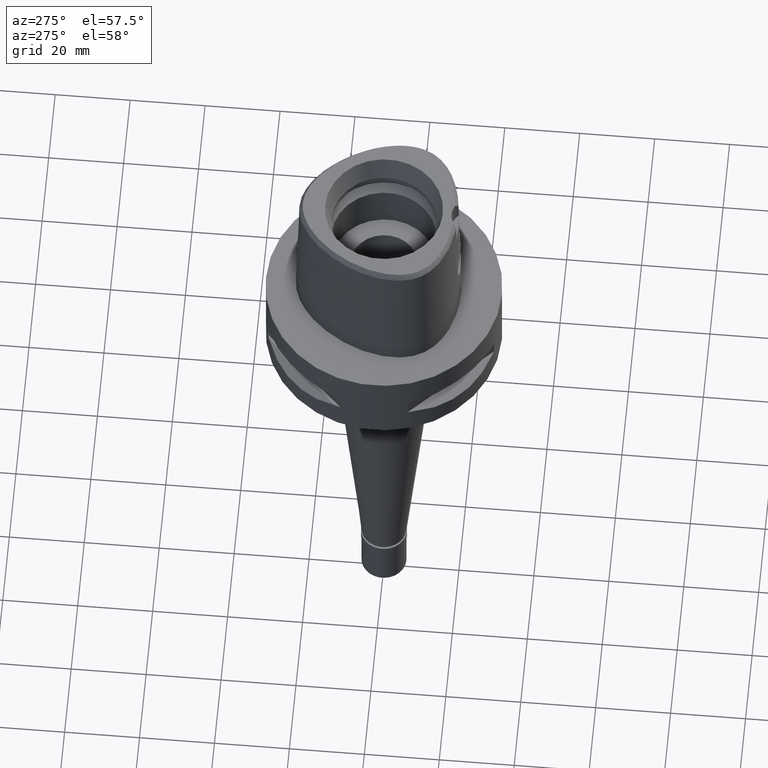
[diagram: clean part render]
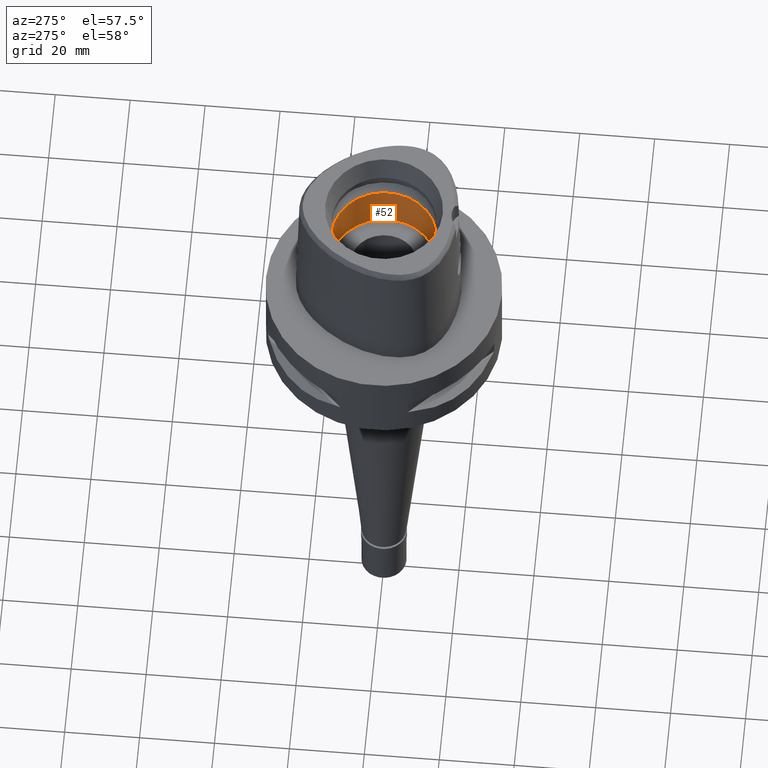
[diagram: same view with one face highlighted and labeled with its STEP entity id]
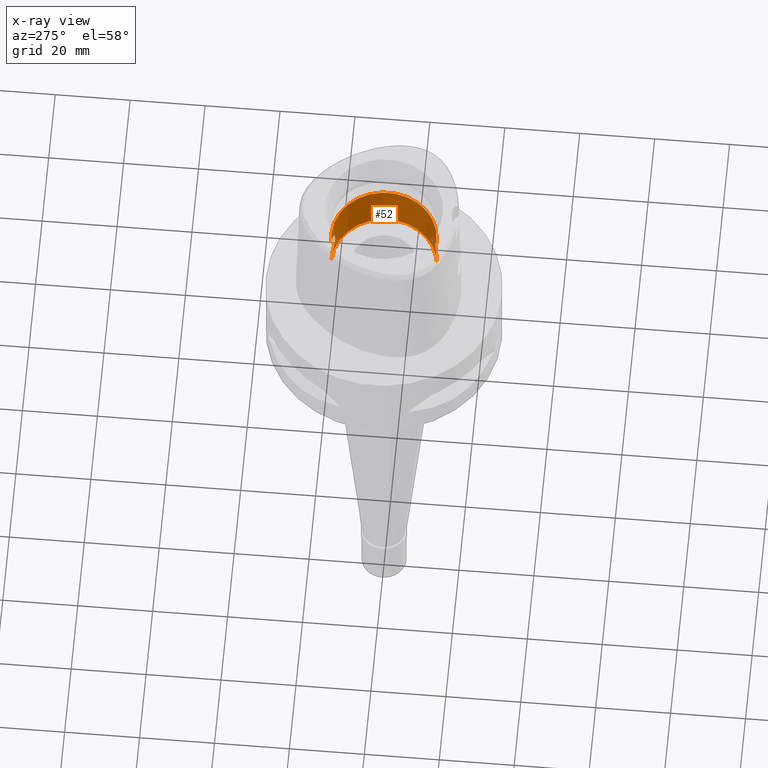
[diagram: x-ray of the same camera — body ghosted, the highlighted face saturated]
A machine part, auxiliary view. The second image highlights one B-rep face of the part: STEP entity #52.
The next image is the same camera in x-ray: the body ghosted, the highlighted face saturated — about 4% of this face is hidden behind the body in this view.
In plain terms, the highlighted cylindrical surface (partial cylindrical patch) has radius 14 mm, axis along (0, 0, -1).
Its self-contained STEP definition (entity closure, byte-faithful):
#13 = CARTESIAN_POINT ( 'NONE',  ( 1.773869829159604228, -13.88717198022183119, 11.85856959825438750 ) ) ;
#24 = DIRECTION ( 'NONE',  ( 0.0000000000000000000, 0.0000000000000000000, 1.000000000000000000 ) ) ;
#34 = CARTESIAN_POINT ( 'NONE',  ( 4.027167981715002121, -13.40875010522974264, 14.99686531039766102 ) ) ;
#51 = CARTESIAN_POINT ( 'NONE',  ( 0.5031375786334186806, 13.99299620741434147, 11.47286437005295490 ) ) ;
#52 = ADVANCED_FACE ( 'NONE', ( #214 ), #1316, .F. ) ;
#56 = CARTESIAN_POINT ( 'NONE',  ( 3.267860856929353019, -13.61367823520136078, 13.10390269899082583 ) ) ;
#163 = CARTESIAN_POINT ( 'NONE',  ( 0.2481266265557514894, 13.99999999999999822, 11.44999999999999929 ) ) ;
#189 = CARTESIAN_POINT ( 'NONE',  ( 1.499100513063570173, 13.91942902670013815, 11.73762153892137405 ) ) ;
#209 = CARTESIAN_POINT ( 'NONE',  ( 3.359020109920425323, 13.59103542220760552, 13.23737089539453038 ) ) ;
#210 = CARTESIAN_POINT ( 'NONE',  ( 0.0000000000000000000, -14.00000000000000000, 24.19999999999999929 ) ) ;
#214 = FACE_OUTER_BOUND ( 'NONE', #1230, .T. ) ;
#216 = CARTESIAN_POINT ( 'NONE',  ( 2.987578035450121572, -13.67819521536447702, 18.24080360132781919 ) ) ;
#236 = CARTESIAN_POINT ( 'NONE',  ( 3.701448599103457582, 13.50196410078377518, 13.85577559941025960 ) ) ;
#261 = CARTESIAN_POINT ( 'NONE',  ( 1.210739730898177324, 13.94747155560755481, 11.63462642381729140 ) ) ;
#269 = DIRECTION ( 'NONE',  ( 0.0000000000000000000, 0.0000000000000000000, 1.000000000000000000 ) ) ;
#285 = ORIENTED_EDGE ( 'NONE', *, *, #3662, .F. ) ;
#318 = CARTESIAN_POINT ( 'NONE',  ( 2.838009928923838299, -13.70933862723131291, 18.38942009772304687 ) ) ;
#332 = CARTESIAN_POINT ( 'NONE',  ( 2.010501717863202309, 13.85534156540723494, 19.01828921525949312 ) ) ;
#339 = CARTESIAN_POINT ( 'NONE',  ( 3.612125191146808856, -13.52615234760308560, 17.33290907846121343 ) ) ;
#353 = CARTESIAN_POINT ( 'NONE',  ( 2.322867096201477466, 13.80594945636748427, 18.81782271161904063 ) ) ;
#362 = CARTESIAN_POINT ( 'NONE',  ( 3.754236443711939319, -13.48734669257275520, 13.98069631227876997 ) ) ;
#385 = CARTESIAN_POINT ( 'NONE',  ( 2.130881178330037429, -13.83743566614538878, 12.05283858994643609 ) ) ;
#409 = CARTESIAN_POINT ( 'NONE',  ( 3.098515381885727393, -13.65306636117298389, 12.89080379854775238 ) ) ;
#434 = CARTESIAN_POINT ( 'NONE',  ( 3.518056051390934691, -13.55098508630389631, 17.51091968138044663 ) ) ;
#562 = CARTESIAN_POINT ( 'NONE',  ( 4.050104837866480345, 13.40137507185019139, 15.25494482423060916 ) ) ;
#567 = DIRECTION ( 'NONE',  ( 0.0000000000000000000, 0.0000000000000000000, -1.000000000000000000 ) ) ;
#587 = CARTESIAN_POINT ( 'NONE',  ( 1.307187133430519399, 13.93893568339380096, 11.66569962607649025 ) ) ;
#609 = CARTESIAN_POINT ( 'NONE',  ( 4.027216825679192702, 13.40877103518746871, 14.99603235320515005 ) ) ;
#631 = CARTESIAN_POINT ( 'NONE',  ( 3.770295828579745656, 13.48287449147561468, 16.97915267913196757 ) ) ;
#633 = CIRCLE ( 'NONE', #3091, 14.00000000000000000 ) ;
#645 = CARTESIAN_POINT ( 'NONE',  ( 2.225307842479133935, -13.82200032480936791, 18.88386244170206041 ) ) ;
#660 = CARTESIAN_POINT ( 'NONE',  ( 1.994196793524470213, 13.85732250604610805, 11.97431708282836205 ) ) ;
#682 = CARTESIAN_POINT ( 'NONE',  ( 3.386213530918528836, 13.58429339872634856, 17.72172867400206897 ) ) ;
#689 = CARTESIAN_POINT ( 'NONE',  ( 2.230287417955466367, -13.82119696819923327, 18.88058087294110976 ) ) ;
#690 = DIRECTION ( 'NONE',  ( 0.0000000000000000000, -1.000000000000000000, 0.0000000000000000000 ) ) ;
#706 = CARTESIAN_POINT ( 'NONE',  ( 2.130873031702367637, 13.83743700474895988, 18.94716637657443314 ) ) ;
#716 = CARTESIAN_POINT ( 'NONE',  ( 1.499090398665863022, -13.91942988264788639, 19.26238249073140807 ) ) ;
#740 = CARTESIAN_POINT ( 'NONE',  ( 3.377736576017047909, -13.58640317541383702, 13.26540774977728709 ) ) ;
#760 = CARTESIAN_POINT ( 'NONE',  ( 2.268773195283242394, -13.81494468100451023, 12.14511832103185718 ) ) ;
#785 = CARTESIAN_POINT ( 'NONE',  ( 3.927475894227258735, -13.43840014691404683, 16.52342187611872504 ) ) ;
#810 = CARTESIAN_POINT ( 'NONE',  ( 1.832691376603167388, -13.87954557478522410, 11.88776574647553552 ) ) ;
#821 = CARTESIAN_POINT ( 'NONE',  ( 0.0000000000000000000, -14.00000000000000000, 11.00000000000000000 ) ) ;
#858 = CARTESIAN_POINT ( 'NONE',  ( 0.4996170307295716984, -14.00000000000000355, 11.45000000000000107 ) ) ;
#876 = LINE ( 'NONE', #1591, #2296 ) ;
#882 = ORIENTED_EDGE ( 'NONE', *, *, #3742, .T. ) ;
#934 = CARTESIAN_POINT ( 'NONE',  ( 3.217025596612696159, 13.62560769364254121, 13.03875506140147245 ) ) ;
#967 = CARTESIAN_POINT ( 'NONE',  ( 3.922078288975832550, 13.43983163058545216, 16.51882742553132744 ) ) ;
#991 = CARTESIAN_POINT ( 'NONE',  ( 3.253122838855824650, 13.61695847479241372, 13.08700209528362990 ) ) ;
#993 = VERTEX_POINT ( 'NONE', #210 ) ;
#997 = CARTESIAN_POINT ( 'NONE',  ( 2.206604282644675674, -13.82500263683901487, 18.89610616578819347 ) ) ;
#1012 = CARTESIAN_POINT ( 'NONE',  ( 3.612092316972849382, 13.52616139820945840, 13.66702611675805912 ) ) ;
#1020 = CARTESIAN_POINT ( 'NONE',  ( 3.354718119057051418, -13.59210031745036140, 17.76901166031866452 ) ) ;
#1038 = CARTESIAN_POINT ( 'NONE',  ( 3.649287754595487154, 13.51628378879415493, 17.26146357317137259 ) ) ;
#1046 = CARTESIAN_POINT ( 'NONE',  ( 2.180430719104277770, -13.82916524274332204, 18.91303019137124508 ) ) ;
#1060 = CARTESIAN_POINT ( 'NONE',  ( 1.571457089747873015, 13.91140721976916161, 19.23272879698425797 ) ) ;
#1067 = CARTESIAN_POINT ( 'NONE',  ( 0.5031329880713201197, -13.99299628181930544, 19.52713608389184330 ) ) ;
#1082 = CARTESIAN_POINT ( 'NONE',  ( 1.643112089911282103, 13.90317243032383310, 19.20194634167802761 ) ) ;
#1088 = CARTESIAN_POINT ( 'NONE',  ( 3.092415008935291088, -13.65466569416509302, 18.11866219970372427 ) ) ;
#1109 = CARTESIAN_POINT ( 'NONE',  ( 2.903809840715919854, 13.69558042598262659, 18.32352754249725635 ) ) ;
#1121 = CARTESIAN_POINT ( 'NONE',  ( 3.833378784114828797, -13.46518651549687284, 14.19006897786093369 ) ) ;
#1136 = CARTESIAN_POINT ( 'NONE',  ( 3.098494804879538211, 13.65307097560869387, 18.10922060603499872 ) ) ;
#1143 = CARTESIAN_POINT ( 'NONE',  ( 3.524216152961116677, -13.54926445640474597, 13.50320070279009421 ) ) ;
#1146 = CARTESIAN_POINT ( 'NONE',  ( 0.0000000000000000000, 14.00000000000000000, 11.00000000000000000 ) ) ;
#1156 = CARTESIAN_POINT ( 'NONE',  ( 3.444114222031988692, 13.56977022798860943, 17.63138026180062568 ) ) ;
#1162 = CARTESIAN_POINT ( 'NONE',  ( 3.922079205926539913, -13.43983130148735583, 14.48117699415297821 ) ) ;
#1185 = CARTESIAN_POINT ( 'NONE',  ( 3.471407568611402983, -13.56281871368658543, 13.41360808472617805 ) ) ;
#1204 = ORIENTED_EDGE ( 'NONE', *, *, #3434, .T. ) ;
#1213 = CARTESIAN_POINT ( 'NONE',  ( 3.953314660134230607, -13.43069195179432818, 14.61062672899636716 ) ) ;
#1230 = EDGE_LOOP ( 'NONE', ( #285, #1204, #3853, #2599, #882, #2405, #3518, #3464 ) ) ;
#1312 = CARTESIAN_POINT ( 'NONE',  ( 1.467188112043209536, 13.92282148873381864, 11.72506250693671959 ) ) ;
#1316 = CYLINDRICAL_SURFACE ( 'NONE', #2637, 14.00000000000000000 ) ;
#1335 = CARTESIAN_POINT ( 'NONE',  ( 2.705631081799999116, 13.73602433005236634, 12.48611241059719035 ) ) ;
#1365 = CARTESIAN_POINT ( 'NONE',  ( 3.300115213836696260, 13.60554254243724337, 13.15213791959231138 ) ) ;
#1389 = CARTESIAN_POINT ( 'NONE',  ( 3.953315574824776135, 13.43069190713378624, 16.38937041768015845 ) ) ;
#1394 = CARTESIAN_POINT ( 'NONE',  ( 3.300146341868730016, -13.60553517925856859, 17.84781835519089199 ) ) ;
#1408 = CARTESIAN_POINT ( 'NONE',  ( 3.681888265755570266, 13.50730898609645436, 13.81262890093873175 ) ) ;
#1414 = CARTESIAN_POINT ( 'NONE',  ( 1.643402327193238976, -13.90359116571691622, 19.20357680869639339 ) ) ;
#1429 = CARTESIAN_POINT ( 'NONE',  ( 3.471388650628844719, 13.56282351116247931, 17.58642340599717713 ) ) ;
#1439 = CARTESIAN_POINT ( 'NONE',  ( 1.419263858855973170, -13.92782887280988824, 19.29344666030895894 ) ) ;
#1457 = EDGE_CURVE ( 'NONE', #4826, #3936, #876, .T. ) ;
#1485 = CARTESIAN_POINT ( 'NONE',  ( 3.792123985356183447, -13.47677720437842019, 14.07719458704158022 ) ) ;
#1502 = CARTESIAN_POINT ( 'NONE',  ( 3.393626394333282725, 13.58244558944590707, 17.71041667754009907 ) ) ;
#1512 = CARTESIAN_POINT ( 'NONE',  ( 2.935464796398259413, -13.68884427349787636, 12.70941809089527830 ) ) ;
#1529 = CARTESIAN_POINT ( 'NONE',  ( 1.832682128990698933, 13.87954668814469095, 19.11223895306134324 ) ) ;
#1536 = CARTESIAN_POINT ( 'NONE',  ( 3.444134305109939564, -13.56976516763156049, 13.36865222198565561 ) ) ;
#1555 = CARTESIAN_POINT ( 'NONE',  ( 2.903830259238845191, -13.69557610161474948, 12.67649343709667953 ) ) ;
#1559 = CARTESIAN_POINT ( 'NONE',  ( 0.0000000000000000000, 14.00000000000000000, 11.00000000000000000 ) ) ;
#1570 = CARTESIAN_POINT ( 'NONE',  ( 0.8886602407127003334, 13.97198482965737121, 11.54653314446270684 ) ) ;
#1575 = CARTESIAN_POINT ( 'NONE',  ( 3.701476196218872250, -13.50195603622213092, 17.14416223936576600 ) ) ;
#1582 = DIRECTION ( 'NONE',  ( 0.0000000000000000000, 0.0000000000000000000, 1.000000000000000000 ) ) ;
#1591 = CARTESIAN_POINT ( 'NONE',  ( 0.0000000000000000000, 14.00000000000000000, 19.55000000000000071 ) ) ;
#1625 = LINE ( 'NONE', #2825, #2375 ) ;
#1680 = CARTESIAN_POINT ( 'NONE',  ( 3.344202712348856910, 13.59470072214079472, 13.21548413958312906 ) ) ;
#1703 = CARTESIAN_POINT ( 'NONE',  ( 2.407026743192268281, 13.79179092510792692, 12.24014823371155458 ) ) ;
#1706 = B_SPLINE_CURVE_WITH_KNOTS ( 'NONE', 3,
 ( #2961, #1785, #1067, #4799, #4014, #3355, #3329, #1439, #2137, #716, #4437, #1414, #3620, #2934, #3648, #3285, #3717, #1046, #997, #4776, #645, #689, #4751, #4845, #2980, #4063, #2576, #4481, #4081, #2208, #318, #216, #1088, #1737, #3258, #1394, #2912, #4410, #1020, #4040, #2165, #3675, #4529, #434, #339, #3832, #4865, #1575, #3439, #2666, #4174, #3377, #3393, #785, #1859, #1881, #1948, #34, #1213, #1162, #4566, #1121, #1485, #2998, #2303, #362, #3744, #4886, #3029, #4505, #1143, #1185, #1536, #2257, #2627, #3809, #4132, #740, #2325, #56, #1907, #409, #1928, #3764, #1512, #1555, #4225, #3071, #2238, #2694, #2648, #3461, #4153, #760, #2276, #4202, #3782, #385, #3419, #810, #13, #3102, #3050, #4597, #4549, #2721, #3176, #858, #3905 ),
 .UNSPECIFIED., .F., .F.,
 ( 4, 2, 2, 1, 1, 2, 2, 2, 2, 1, 1, 1, 2, 2, 2, 2, 1, 2, 2, 2, 2, 1, 1, 1, 2, 2, 2, 2, 1, 1, 2, 2, 2, 2, 2, 2, 1, 1, 1, 2, 2, 2, 2, 1, 1, 1, 2, 2, 2, 2, 2, 2, 2, 2, 1, 1, 1, 2, 2, 2, 2, 1, 2, 2, 4 ),
 ( 0.0000000000000000000, 0.06249999999994695909, 0.09374999999992046640, 0.1093749999999070882, 0.1171874999999003714, 0.1210937499998970546, 0.1249999999998937378, 0.1562499999998678002, 0.1718749999998550326, 0.1796874999998488431, 0.1835937499998455125, 0.1855468749998440137, 0.1865234374998430977, 0.1874999999998421818, 0.2187499999998184230, 0.2343749999998064881, 0.2421874999998005484, 0.2460937499997977451, 0.2499999999997949973, 0.2812499999997747357, 0.2968749999997642441, 0.3046874999997590816, 0.3085937499997564726, 0.3105468749997550848, 0.3115234374997549183, 0.3124999999997547517, 0.3437499999997624123, 0.3593749999997665201, 0.3671874999997685185, 0.3710937499997691846, 0.3730468749997694622, 0.3749999999997697397, 0.4374999999997811195, 0.4999999999997926103, 0.5624999999998034905, 0.5937499999998089306, 0.6093749999998114841, 0.6171874999998129274, 0.6210937499998135936, 0.6230468749998141487, 0.6249999999998147038, 0.6562499999998239186, 0.6718749999998283595, 0.6796874999998306910, 0.6835937499998319122, 0.6855468749998325784, 0.6865234374998329114, 0.6874999999998333555, 0.7187499999998478994, 0.7343749999998552269, 0.7421874999998590017, 0.7499999999998626654, 0.7812499999998773204, 0.7968749999998847589, 0.8046874999998885336, 0.8085937499998905320, 0.8105468749998913092, 0.8115234374998919753, 0.8124999999998925304, 0.8437499999999107381, 0.8593749999999200639, 0.8671874999999246159, 0.8710937499999267253, 0.8749999999999288347, 1.000000000000000000 ),
 .UNSPECIFIED. ) ;
#1728 = CARTESIAN_POINT ( 'NONE',  ( 1.516910412628454941, 13.91749993127530338, 11.74477520273373088 ) ) ;
#1737 = CARTESIAN_POINT ( 'NONE',  ( 3.217051634182986231, -13.62560167972273106, 17.96121095376075516 ) ) ;
#1758 = CARTESIAN_POINT ( 'NONE',  ( 4.027172463327453045, 13.40874935841133286, 16.00310739072683219 ) ) ;
#1779 = CARTESIAN_POINT ( 'NONE',  ( 3.754225769601407414, 13.48734939608367256, 17.01933006533145942 ) ) ;
#1785 = CARTESIAN_POINT ( 'NONE',  ( 0.2481241772469208740, -14.00000000000000000, 19.55000000000000071 ) ) ;
#1798 = CARTESIAN_POINT ( 'NONE',  ( 3.381252386274370192, 13.58552879951883163, 17.72927178203390142 ) ) ;
#1825 = CARTESIAN_POINT ( 'NONE',  ( 2.261340657230167306, 13.81616386826044440, 18.85988797635845771 ) ) ;
#1851 = CARTESIAN_POINT ( 'NONE',  ( 2.268763823125369505, 13.81494635579297814, 18.85488801683514737 ) ) ;
#1859 = CARTESIAN_POINT ( 'NONE',  ( 4.027223470529567528, -13.40876944168271834, 16.00391502723211801 ) ) ;
#1874 = CARTESIAN_POINT ( 'NONE',  ( 2.255317399662760014, 13.81714987027326735, 18.86393579140817423 ) ) ;
#1881 = CARTESIAN_POINT ( 'NONE',  ( 4.050109039351831086, -13.40137442886396535, 15.74496307468086265 ) ) ;
#1899 = CARTESIAN_POINT ( 'NONE',  ( 2.993275682357356082, 13.67636296179904498, 18.22847972523965154 ) ) ;
#1907 = CARTESIAN_POINT ( 'NONE',  ( 3.144649004257418667, -13.64249969685167940, 12.94694166653767198 ) ) ;
#1928 = CARTESIAN_POINT ( 'NONE',  ( 3.020680690208538355, -13.67035562331175491, 12.80193796120899208 ) ) ;
#1948 = CARTESIAN_POINT ( 'NONE',  ( 4.049890164045743646, -13.40142381087270174, 15.25144457808762510 ) ) ;
#1974 = CIRCLE ( 'NONE', #3866, 14.00000000000000000 ) ;
#2060 = DIRECTION ( 'NONE',  ( 0.0000000000000000000, 0.0000000000000000000, 1.000000000000000000 ) ) ;
#2082 = CARTESIAN_POINT ( 'NONE',  ( 2.180412222381781895, 13.82916808513172846, 12.08695799700200801 ) ) ;
#2106 = CARTESIAN_POINT ( 'NONE',  ( 3.092390698994108789, 13.65467114203288723, 12.88130927505224399 ) ) ;
#2128 = CARTESIAN_POINT ( 'NONE',  ( 4.049894426080560272, 13.40142315477311641, 15.74850829861885337 ) ) ;
#2137 = CARTESIAN_POINT ( 'NONE',  ( 1.467178111807090790, -13.92282230864165449, 19.27494137943474684 ) ) ;
#2157 = CARTESIAN_POINT ( 'NONE',  ( 3.760688074394363589, 13.48555087701913813, 17.00326317844460533 ) ) ;
#2165 = CARTESIAN_POINT ( 'NONE',  ( 3.361919059612541449, -13.59031805818456284, 17.75831946434291808 ) ) ;
#2181 = CARTESIAN_POINT ( 'NONE',  ( 2.217806395123072427, 13.82320634839983597, 12.11121632282059579 ) ) ;
#2201 = CARTESIAN_POINT ( 'NONE',  ( 2.632421441384690919, 13.75053619278275541, 18.58073368450722640 ) ) ;
#2208 = CARTESIAN_POINT ( 'NONE',  ( 2.824278146738441464, -13.71216806335095839, 18.40282419414096537 ) ) ;
#2228 = CARTESIAN_POINT ( 'NONE',  ( 3.267839163661066859, 13.61368337680985618, 17.89612675551567023 ) ) ;
#2238 = CARTESIAN_POINT ( 'NONE',  ( 2.474909159131547742, -13.77946166279600604, 12.29346908443046082 ) ) ;
#2257 = CARTESIAN_POINT ( 'NONE',  ( 3.410743495979883466, -13.57816568318279060, 13.31599196301607613 ) ) ;
#2260 = VERTEX_POINT ( 'NONE', #4245 ) ;
#2262 = CARTESIAN_POINT ( 'NONE',  ( 0.0000000000000000000, -14.00000000000000000, 19.55000000000000071 ) ) ;
#2271 = EDGE_CURVE ( 'NONE', #2260, #4826, #4645, .T. ) ;
#2276 = CARTESIAN_POINT ( 'NONE',  ( 2.261349992708959533, -13.81616220668975537, 12.14011830679867110 ) ) ;
#2296 = VECTOR ( 'NONE', #24, 1000.000000000000000 ) ;
#2303 = CARTESIAN_POINT ( 'NONE',  ( 3.760698389515004347, -13.48554827043490789, 13.99676262888475797 ) ) ;
#2325 = CARTESIAN_POINT ( 'NONE',  ( 3.329855789848241709, -13.59830196918598055, 13.19313464223616705 ) ) ;
#2375 = VECTOR ( 'NONE', #4693, 1000.000000000000000 ) ;
#2405 = ORIENTED_EDGE ( 'NONE', *, *, #3984, .T. ) ;
#2447 = CARTESIAN_POINT ( 'NONE',  ( 3.927462924596487603, 13.43840419036691181, 14.47652859054611341 ) ) ;
#2474 = CARTESIAN_POINT ( 'NONE',  ( 3.354680329594084576, 13.59210945295762407, 13.23093247315391530 ) ) ;
#2497 = CARTESIAN_POINT ( 'NONE',  ( 3.446439376948577049, 13.56939223703516539, 13.36783492905181880 ) ) ;
#2517 = CARTESIAN_POINT ( 'NONE',  ( 3.362135645919370752, 13.59026426608059701, 13.24199978629162899 ) ) ;
#2535 = DIRECTION ( 'NONE',  ( 0.0000000000000000000, 1.000000000000000000, 0.0000000000000000000 ) ) ;
#2545 = CARTESIAN_POINT ( 'NONE',  ( 3.737862436382283438, 13.49191471466282799, 13.94085186772226059 ) ) ;
#2561 = CARTESIAN_POINT ( 'NONE',  ( 0.0000000000000000000, 0.0000000000000000000, 11.00000000000000000 ) ) ;
#2568 = CARTESIAN_POINT ( 'NONE',  ( 1.559041427487883436, 13.91280564626705640, 19.23793945981584130 ) ) ;
#2576 = CARTESIAN_POINT ( 'NONE',  ( 2.705656092661654188, -13.73601936352376995, 18.51386516676384986 ) ) ;
#2593 = CARTESIAN_POINT ( 'NONE',  ( 3.377713256198346947, 13.58640893255272175, 17.73462749918996906 ) ) ;
#2599 = ORIENTED_EDGE ( 'NONE', *, *, #3046, .F. ) ;
#2619 = CARTESIAN_POINT ( 'NONE',  ( 2.749412119312125036, 13.72794699198624713, 18.47891641149058017 ) ) ;
#2627 = CARTESIAN_POINT ( 'NONE',  ( 3.393648836081902154, -13.58244002077893064, 13.28961777950231671 ) ) ;
#2637 = AXIS2_PLACEMENT_3D ( 'NONE', #4011, #567, #3596 ) ;
#2641 = CARTESIAN_POINT ( 'NONE',  ( 3.020660456014761408, 13.67036005591191383, 18.19808468476703922 ) ) ;
#2647 = VERTEX_POINT ( 'NONE', #1146 ) ;
#2648 = CARTESIAN_POINT ( 'NONE',  ( 2.356179768647385320, -13.80026442332236236, 12.20580376818401902 ) ) ;
#2666 = CARTESIAN_POINT ( 'NONE',  ( 3.731972597726727070, -13.49354487605845776, 17.07319389047233926 ) ) ;
#2681 = CARTESIAN_POINT ( 'NONE',  ( 0.0000000000000000000, -14.00000000000000000, 11.44999999999999929 ) ) ;
#2694 = CARTESIAN_POINT ( 'NONE',  ( 2.425356293392302298, -13.78827839653583354, 12.25602180745960545 ) ) ;
#2721 = CARTESIAN_POINT ( 'NONE',  ( 1.559056483625618883, -13.91280418779705386, 11.76206681924250752 ) ) ;
#2812 = CARTESIAN_POINT ( 'NONE',  ( 0.0000000000000000000, -14.00000000000000000, 19.55000000000000071 ) ) ;
#2825 = CARTESIAN_POINT ( 'NONE',  ( 0.0000000000000000000, -14.00000000000000000, 11.00000000000000000 ) ) ;
#2827 = CARTESIAN_POINT ( 'NONE',  ( 3.731947233722187285, 13.49355243647018376, 13.92674594028295232 ) ) ;
#2849 = CARTESIAN_POINT ( 'NONE',  ( 3.740349717817977204, 13.49122537259350629, 13.94682241178703030 ) ) ;
#2882 = CARTESIAN_POINT ( 'NONE',  ( 3.321820542063278925, 13.60022405023964787, 13.18290148916545412 ) ) ;
#2898 = CARTESIAN_POINT ( 'NONE',  ( 0.0000000000000000000, 14.00000000000000000, 19.55000000000000071 ) ) ;
#2905 = CARTESIAN_POINT ( 'NONE',  ( 3.833372613776692361, 13.46518805228021520, 16.80994934952858344 ) ) ;
#2912 = CARTESIAN_POINT ( 'NONE',  ( 3.321853759952848595, -13.60021613419694297, 17.81705094759875152 ) ) ;
#2924 = CARTESIAN_POINT ( 'NONE',  ( 3.750524584726236732, 13.48837842770459616, 17.02843767657927287 ) ) ;
#2934 = CARTESIAN_POINT ( 'NONE',  ( 1.935032715380933022, -13.86568800699301107, 19.05844582699477030 ) ) ;
#2951 = CARTESIAN_POINT ( 'NONE',  ( 3.410721871955822770, 13.57817107781619015, 17.68404181485596283 ) ) ;
#2961 = CARTESIAN_POINT ( 'NONE',  ( 0.0000000000000000000, -14.00000000000000000, 19.55000000000000071 ) ) ;
#2980 = CARTESIAN_POINT ( 'NONE',  ( 2.564513564700615866, -13.76306012764494291, 18.63532267608531612 ) ) ;
#2992 = CARTESIAN_POINT ( 'NONE',  ( 1.686542341552597746, 13.89794981159259102, 19.18226932051401334 ) ) ;
#2998 = CARTESIAN_POINT ( 'NONE',  ( 3.770305607765263467, -13.48287202864421452, 14.02087226160112010 ) ) ;
#3007 = DIRECTION ( 'NONE',  ( 0.0000000000000000000, 0.0000000000000000000, -1.000000000000000000 ) ) ;
#3029 = CARTESIAN_POINT ( 'NONE',  ( 3.649300473937637346, -13.51628050932879610, 13.73856294195509165 ) ) ;
#3044 = CARTESIAN_POINT ( 'NONE',  ( 2.286392394241208326, 13.81203773448986638, 18.84292893651711864 ) ) ;
#3046 = EDGE_CURVE ( 'NONE', #3335, #4642, #1706, .T. ) ;
#3050 = CARTESIAN_POINT ( 'NONE',  ( 1.643124464740160606, -13.90317117702929828, 11.79805916107681618 ) ) ;
#3071 = CARTESIAN_POINT ( 'NONE',  ( 2.632435958395578091, -13.75053331393012712, 12.41927859767038989 ) ) ;
#3091 = AXIS2_PLACEMENT_3D ( 'NONE', #3287, #269, #690 ) ;
#3096 = CARTESIAN_POINT ( 'NONE',  ( 1.017647129683028062, 13.96323008892529138, 11.57763991490384470 ) ) ;
#3102 = CARTESIAN_POINT ( 'NONE',  ( 1.686553841137762522, -13.89794860813394628, 11.81773595103047825 ) ) ;
#3131 = LINE ( 'NONE', #1559, #3722 ) ;
#3176 = CARTESIAN_POINT ( 'NONE',  ( 1.029195579378260561, -13.97152789805618411, 11.54372935797607624 ) ) ;
#3201 = CARTESIAN_POINT ( 'NONE',  ( 3.722985834064958865, 13.49603060517573816, 13.90554383508990988 ) ) ;
#3225 = CARTESIAN_POINT ( 'NONE',  ( 1.758911448686518941, 13.88947925417348372, 11.84948192329623851 ) ) ;
#3249 = CARTESIAN_POINT ( 'NONE',  ( 2.794188265651929459, 13.71831884113877642, 12.56820068598364593 ) ) ;
#3258 = CARTESIAN_POINT ( 'NONE',  ( 3.253150413822480047, -13.61695205280139120, 17.91296083928640215 ) ) ;
#3277 = CARTESIAN_POINT ( 'NONE',  ( 1.643405570628456491, 13.90359095054645344, 11.79642487333540757 ) ) ;
#3285 = CARTESIAN_POINT ( 'NONE',  ( 2.083417932766036262, -13.84411419571719470, 18.97319161937867094 ) ) ;
#3287 = CARTESIAN_POINT ( 'NONE',  ( 0.0000000000000000000, 0.0000000000000000000, 24.19999999999999929 ) ) ;
#3300 = CARTESIAN_POINT ( 'NONE',  ( 1.935022422291571287, 13.86568947269307372, 11.94154862989611843 ) ) ;
#3308 = CARTESIAN_POINT ( 'NONE',  ( 0.0000000000000000000, 14.00000000000000000, 24.19999999999999929 ) ) ;
#3320 = CARTESIAN_POINT ( 'NONE',  ( 2.256421358912781283, 13.81696909001217755, 18.86319363593035803 ) ) ;
#3329 = CARTESIAN_POINT ( 'NONE',  ( 1.307177758832643200, -13.93893633211208005, 19.33430355922904198 ) ) ;
#3335 = VERTEX_POINT ( 'NONE', #2262 ) ;
#3347 = CARTESIAN_POINT ( 'NONE',  ( 1.029184106524041908, 13.97152837429127814, 19.45627297030864966 ) ) ;
#3355 = CARTESIAN_POINT ( 'NONE',  ( 1.210730804435200314, -13.94747211364480322, 19.36537636551466690 ) ) ;
#3377 = CARTESIAN_POINT ( 'NONE',  ( 3.740374405824263171, -13.49121797331939376, 17.05311813184026093 ) ) ;
#3393 = CARTESIAN_POINT ( 'NONE',  ( 3.850575600155246914, -13.46063562733534802, 16.78609245250580173 ) ) ;
#3411 = CARTESIAN_POINT ( 'NONE',  ( 1.600065394705357580, 13.90814645046916098, 19.22055538722659662 ) ) ;
#3419 = CARTESIAN_POINT ( 'NONE',  ( 2.010509632062541296, -13.85534039798980288, 11.98171533894314855 ) ) ;
#3434 = EDGE_CURVE ( 'NONE', #2647, #4580, #1974, .T. ) ;
#3439 = CARTESIAN_POINT ( 'NONE',  ( 3.723011875671556670, -13.49602288719285070, 17.09439534801255434 ) ) ;
#3461 = CARTESIAN_POINT ( 'NONE',  ( 2.322876849046348280, -13.80594766825983477, 12.18218411294631487 ) ) ;
#3464 = ORIENTED_EDGE ( 'NONE', *, *, #2271, .F. ) ;
#3518 = ORIENTED_EDGE ( 'NONE', *, *, #1457, .F. ) ;
#3564 = CARTESIAN_POINT ( 'NONE',  ( 0.0000000000000000000, 14.00000000000000000, 11.44999999999999929 ) ) ;
#3591 = CARTESIAN_POINT ( 'NONE',  ( 2.564495781793068474, 13.76306347782364803, 12.36466282430107277 ) ) ;
#3596 = DIRECTION ( 'NONE',  ( 0.0000000000000000000, -1.000000000000000000, 0.0000000000000000000 ) ) ;
#3613 = CARTESIAN_POINT ( 'NONE',  ( 2.206585077456928001, 13.82500562468801952, 12.10388135704798707 ) ) ;
#3620 = CARTESIAN_POINT ( 'NONE',  ( 1.758914213848991492, -13.88947879499290750, 19.15051695535359499 ) ) ;
#3634 = CARTESIAN_POINT ( 'NONE',  ( 1.419273682534072156, 13.92782810608995625, 11.70655701252528580 ) ) ;
#3648 = CARTESIAN_POINT ( 'NONE',  ( 1.994209348898474676, -13.85732070567407170, 19.02567586467320737 ) ) ;
#3662 = EDGE_CURVE ( 'NONE', #2647, #2260, #3131, .T. ) ;
#3667 = CARTESIAN_POINT ( 'NONE',  ( 2.225288147331656141, 13.82200341650339048, 12.11612460656252921 ) ) ;
#3675 = CARTESIAN_POINT ( 'NONE',  ( 3.362175151429778186, -13.59025468045918572, 17.75794138952741008 ) ) ;
#3690 = CARTESIAN_POINT ( 'NONE',  ( 2.987551070801526709, 13.67820116341311376, 12.75916637463111591 ) ) ;
#3717 = CARTESIAN_POINT ( 'NONE',  ( 2.128132661679641657, -13.83734705124413544, 18.94611731522211073 ) ) ;
#3722 = VECTOR ( 'NONE', #1582, 1000.000000000000000 ) ;
#3735 = CARTESIAN_POINT ( 'NONE',  ( 0.4996109250519701894, 13.99999999999999645, 19.54999999999999361 ) ) ;
#3742 = EDGE_CURVE ( 'NONE', #3335, #993, #3931, .T. ) ;
#3744 = CARTESIAN_POINT ( 'NONE',  ( 3.750535583141733742, -13.48837563529462713, 13.97158931176320351 ) ) ;
#3758 = CARTESIAN_POINT ( 'NONE',  ( 3.557088666330184612, 13.54068383479868665, 17.43752651045808832 ) ) ;
#3764 = CARTESIAN_POINT ( 'NONE',  ( 2.993295809006948360, -13.67635858830081474, 12.77154234738791239 ) ) ;
#3778 = CARTESIAN_POINT ( 'NONE',  ( 1.773859858338452833, 13.88717310934885418, 19.14143527713584447 ) ) ;
#3782 = CARTESIAN_POINT ( 'NONE',  ( 2.255326728030059957, -13.81714821576314733, 12.13607046265255107 ) ) ;
#3809 = CARTESIAN_POINT ( 'NONE',  ( 3.386236333441687396, -13.58428775399595700, 13.27830608080645547 ) ) ;
#3832 = CARTESIAN_POINT ( 'NONE',  ( 3.641267411166618562, -13.51833533351897110, 17.27419309986312257 ) ) ;
#3853 = ORIENTED_EDGE ( 'NONE', *, *, #4305, .T. ) ;
#3866 = AXIS2_PLACEMENT_3D ( 'NONE', #2561, #3007, #2535 ) ;
#3905 = CARTESIAN_POINT ( 'NONE',  ( 0.0000000000000000000, -14.00000000000000000, 11.44999999999999929 ) ) ;
#3931 = LINE ( 'NONE', #2812, #4510 ) ;
#3936 = VERTEX_POINT ( 'NONE', #3308 ) ;
#3954 = CARTESIAN_POINT ( 'NONE',  ( 2.083402352818058745, 13.84411649684541423, 12.02679904739058614 ) ) ;
#3984 = EDGE_CURVE ( 'NONE', #993, #3936, #633, .T. ) ;
#3986 = CARTESIAN_POINT ( 'NONE',  ( 3.864694685442803035, 13.45627952657924453, 16.71292491328925323 ) ) ;
#4006 = CARTESIAN_POINT ( 'NONE',  ( 3.850558670324750299, 13.46064117905785018, 14.21385490512470717 ) ) ;
#4011 = CARTESIAN_POINT ( 'NONE',  ( 0.0000000000000000000, 0.0000000000000000000, 39.89999999999999858 ) ) ;
#4014 = CARTESIAN_POINT ( 'NONE',  ( 1.017639181934914649, -13.96323047955135976, 19.42236212083248503 ) ) ;
#4029 = CARTESIAN_POINT ( 'NONE',  ( 2.312892876142468079, 13.80784294826305114, 12.17400404919084878 ) ) ;
#4040 = CARTESIAN_POINT ( 'NONE',  ( 3.359058616904238459, -13.59102609449451116, 17.76257193799834155 ) ) ;
#4056 = CARTESIAN_POINT ( 'NONE',  ( 2.128115661595851194, 13.83734960243751111, 12.05387220706998441 ) ) ;
#4063 = CARTESIAN_POINT ( 'NONE',  ( 2.619693227463823160, -13.75270887468661307, 18.58958572218649508 ) ) ;
#4081 = CARTESIAN_POINT ( 'NONE',  ( 2.794219043454203799, -13.71831254960125079, 18.43176999258679416 ) ) ;
#4098 = CARTESIAN_POINT ( 'NONE',  ( 2.425345328129165257, 13.78828047736138984, 18.74398637596747719 ) ) ;
#4124 = CARTESIAN_POINT ( 'NONE',  ( 0.0000000000000000000, 14.00000000000000000, 19.55000000000000071 ) ) ;
#4132 = CARTESIAN_POINT ( 'NONE',  ( 3.381275431629196859, -13.58552310375113947, 13.27076317275104600 ) ) ;
#4145 = CARTESIAN_POINT ( 'NONE',  ( 2.474897426142494083, 13.77946391596793596, 18.70653994206420734 ) ) ;
#4153 = CARTESIAN_POINT ( 'NONE',  ( 2.286401869814578713, -13.81203602588922230, 12.15707754366347437 ) ) ;
#4167 = CARTESIAN_POINT ( 'NONE',  ( 3.524199374396091322, 13.54926875964020105, 17.49682897132844062 ) ) ;
#4174 = CARTESIAN_POINT ( 'NONE',  ( 3.737887346441685743, -13.49190726130687601, 17.05908841074321813 ) ) ;
#4202 = CARTESIAN_POINT ( 'NONE',  ( 2.256430671647058350, -13.81696743697042251, 12.13681261213642415 ) ) ;
#4225 = CARTESIAN_POINT ( 'NONE',  ( 2.749429150023159796, -13.72794355115766329, 12.52109900925337094 ) ) ;
#4245 = CARTESIAN_POINT ( 'NONE',  ( 0.0000000000000000000, 14.00000000000000000, 11.44999999999999929 ) ) ;
#4305 = EDGE_CURVE ( 'NONE', #4580, #4642, #1625, .T. ) ;
#4326 = CARTESIAN_POINT ( 'NONE',  ( 3.361880068175016500, 13.59032751574883591, 13.24162249146314529 ) ) ;
#4351 = CARTESIAN_POINT ( 'NONE',  ( 2.749405349964405776, 13.72738952680891522, 12.52574890522242512 ) ) ;
#4380 = CARTESIAN_POINT ( 'NONE',  ( 3.518019159198581214, 13.55099469858494743, 13.48901570184223431 ) ) ;
#4402 = CARTESIAN_POINT ( 'NONE',  ( 3.792115437650760867, 13.47677934324678084, 16.92282825342334718 ) ) ;
#4410 = CARTESIAN_POINT ( 'NONE',  ( 3.344238891842337136, -13.59469201711720565, 17.78446291338760687 ) ) ;
#4425 = CARTESIAN_POINT ( 'NONE',  ( 3.702127444384075705, 13.50182339615113314, 17.14656876328296775 ) ) ;
#4437 = CARTESIAN_POINT ( 'NONE',  ( 1.516899316913374207, -13.91750090884602642, 19.25522928306563486 ) ) ;
#4452 = CARTESIAN_POINT ( 'NONE',  ( 2.935444872077685563, 13.68884853181210737, 18.29060286042794203 ) ) ;
#4481 = CARTESIAN_POINT ( 'NONE',  ( 2.749433056070069270, -13.72738395001101530, 18.47422555712543257 ) ) ;
#4495 = CARTESIAN_POINT ( 'NONE',  ( 2.356169660536744814, 13.80026629994918608, 18.79420345801550951 ) ) ;
#4505 = CARTESIAN_POINT ( 'NONE',  ( 3.557104272937164247, -13.54067981902765361, 13.56250217907580513 ) ) ;
#4510 = VECTOR ( 'NONE', #2060, 1000.000000000000000 ) ;
#4524 = CARTESIAN_POINT ( 'NONE',  ( 3.329833398926385968, 13.59830740155956441, 17.80689757012891405 ) ) ;
#4529 = CARTESIAN_POINT ( 'NONE',  ( 3.446478207116122849, -13.56938250736906681, 17.63210248794235824 ) ) ;
#4549 = CARTESIAN_POINT ( 'NONE',  ( 1.571471244899176778, -13.91140584751626186, 11.76727716384500333 ) ) ;
#4566 = CARTESIAN_POINT ( 'NONE',  ( 3.864698997087948396, -13.45627842728415935, 14.28708901167128609 ) ) ;
#4580 = VERTEX_POINT ( 'NONE', #821 ) ;
#4597 = CARTESIAN_POINT ( 'NONE',  ( 1.600078814842328390, -13.90814512833361505, 11.77945038584475412 ) ) ;
#4642 = VERTEX_POINT ( 'NONE', #2681 ) ;
#4645 = B_SPLINE_CURVE_WITH_KNOTS ( 'NONE', 3,
 ( #3564, #163, #51, #1570, #3096, #261, #587, #3634, #1312, #189, #1728, #3277, #3225, #3300, #660, #3954, #4056, #2082, #3613, #2181, #3667, #4791, #4029, #1703, #3591, #4769, #1335, #4351, #3249, #4716, #4741, #3690, #2106, #934, #991, #1365, #2882, #1680, #2474, #209, #4326, #2517, #2497, #4380, #1012, #4696, #1408, #236, #3201, #2827, #2545, #2849, #4006, #2447, #609, #562, #2128, #1758, #1389, #967, #3986, #2905, #4402, #631, #2157, #1779, #2924, #4425, #1038, #3758, #4167, #1429, #1156, #2951, #1502, #682, #1798, #2593, #4524, #2228, #4859, #1136, #2641, #1899, #4452, #1109, #2619, #2201, #4145, #4098, #4495, #353, #3044, #1851, #1825, #3320, #1874, #706, #332, #1529, #3778, #2992, #1082, #3411, #1060, #2568, #3347, #3735, #4124 ),
 .UNSPECIFIED., .F., .F.,
 ( 4, 2, 2, 1, 1, 2, 2, 2, 2, 1, 1, 1, 2, 2, 2, 2, 1, 2, 2, 2, 2, 1, 1, 1, 2, 2, 2, 2, 1, 1, 2, 2, 2, 2, 2, 2, 1, 1, 1, 2, 2, 2, 2, 1, 1, 1, 2, 2, 2, 2, 2, 2, 2, 2, 1, 1, 1, 2, 2, 2, 2, 1, 2, 2, 4 ),
 ( 0.0000000000000000000, 0.06250000000000077716, 0.09375000000000115186, 0.1093750000000013739, 0.1171875000000014017, 0.1210937500000013600, 0.1250000000000013323, 0.1562500000000002220, 0.1718749999999998057, 0.1796874999999997224, 0.1835937499999998335, 0.1855468749999997780, 0.1865234374999998335, 0.1874999999999998612, 0.2187500000000020262, 0.2343750000000031086, 0.2421875000000036360, 0.2460937500000038858, 0.2500000000000041633, 0.2812500000000063283, 0.2968750000000074385, 0.3046875000000077161, 0.3085937500000079381, 0.3105468750000078271, 0.3115234375000077161, 0.3125000000000076050, 0.3437499999999991673, 0.3593749999999949485, 0.3671874999999930611, 0.3710937499999919509, 0.3730468749999914513, 0.3749999999999908962, 0.4374999999999809042, 0.4999999999999709122, 0.5624999999999609201, 0.5937499999999558131, 0.6093749999999529265, 0.6171874999999514833, 0.6210937499999508171, 0.6230468749999504841, 0.6249999999999501510, 0.6562499999999559241, 0.6718749999999588107, 0.6796874999999605871, 0.6835937499999614753, 0.6855468749999619194, 0.6865234374999621414, 0.6874999999999623634, 0.7187499999999713562, 0.7343749999999755751, 0.7421874999999776845, 0.7499999999999797939, 0.7812499999999867883, 0.7968749999999903411, 0.8046874999999920064, 0.8085937499999932276, 0.8105468749999934497, 0.8115234374999935607, 0.8124999999999936717, 0.8437499999999947820, 0.8593749999999952260, 0.8671874999999954481, 0.8710937499999954481, 0.8749999999999953371, 1.000000000000000000 ),
 .UNSPECIFIED. ) ;
#4693 = DIRECTION ( 'NONE',  ( 0.0000000000000000000, 0.0000000000000000000, 1.000000000000000000 ) ) ;
#4696 = CARTESIAN_POINT ( 'NONE',  ( 3.641236061949782332, 13.51834413263427237, 13.72574250713725696 ) ) ;
#4716 = CARTESIAN_POINT ( 'NONE',  ( 2.824245245321228559, 13.71217485459718333, 12.59714380723844052 ) ) ;
#4741 = CARTESIAN_POINT ( 'NONE',  ( 2.837973772865252542, 13.70934612522588125, 12.61054438060651961 ) ) ;
#4751 = CARTESIAN_POINT ( 'NONE',  ( 2.312907190676523506, -13.80784060208447528, 18.82598581438754337 ) ) ;
#4769 = CARTESIAN_POINT ( 'NONE',  ( 2.619673022883434399, 13.75271275997030074, 12.41039726459682413 ) ) ;
#4776 = CARTESIAN_POINT ( 'NONE',  ( 2.217825895420810767, -13.82320329823991401, 18.88877091520833318 ) ) ;
#4791 = CARTESIAN_POINT ( 'NONE',  ( 2.230267356647625654, 13.82120012601255432, 12.11940589182308337 ) ) ;
#4799 = CARTESIAN_POINT ( 'NONE',  ( 0.8886530556046985385, -13.97198512727722708, 19.45346844014616394 ) ) ;
#4826 = VERTEX_POINT ( 'NONE', #2898 ) ;
#4845 = CARTESIAN_POINT ( 'NONE',  ( 2.407040127179533417, -13.79178862306922326, 18.75984205951462869 ) ) ;
#4859 = CARTESIAN_POINT ( 'NONE',  ( 3.144628172000966337, 13.64250443855079986, 18.05308396197062848 ) ) ;
#4865 = CARTESIAN_POINT ( 'NONE',  ( 3.681917144189346125, -13.50730066061704093, 17.18730806971668201 ) ) ;
#4886 = CARTESIAN_POINT ( 'NONE',  ( 3.702139074826315213, -13.50182043943946120, 13.85345734740507950 ) ) ;